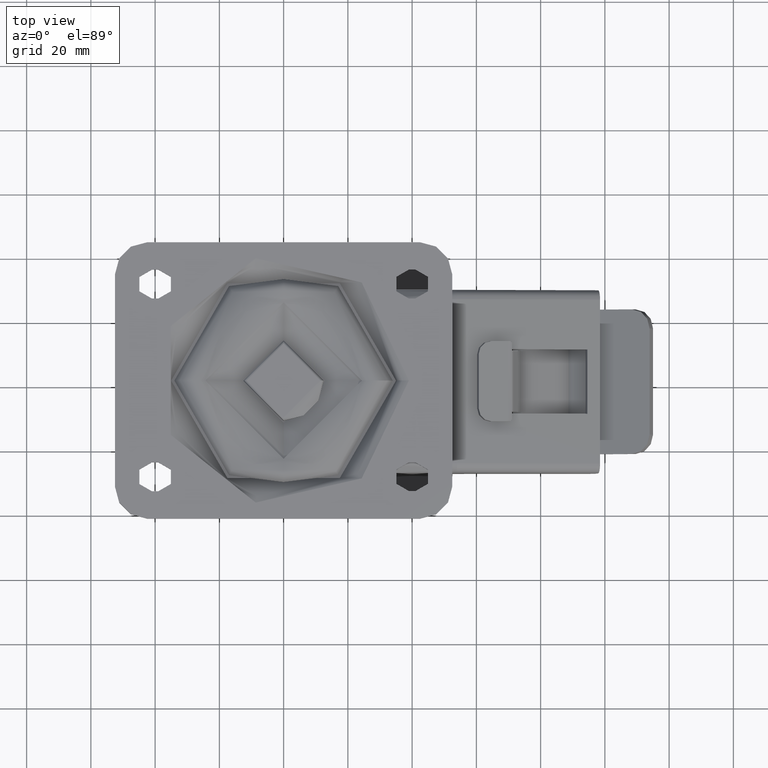
[diagram: clean part render]
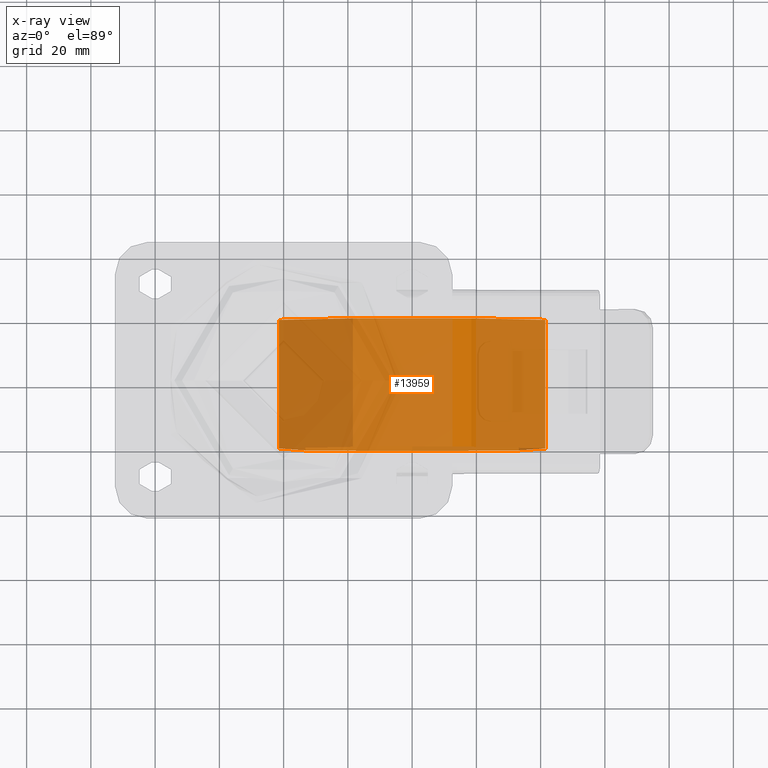
[diagram: x-ray — body ghosted, one internal face saturated and labeled with its STEP entity id]
A machine part, top view, then the same camera in x-ray: the body is ghosted and one INTERNAL B-rep face — a face not visible from any outside direction — is saturated and labeled: STEP entity #13959.
In plain terms, the highlighted cylindrical surface (bore or boss wall) has radius 42.5 mm, axis along (0, 1, 0).
Its self-contained STEP definition (entity closure, byte-faithful):
#1989=LINE('',#25011,#2932);
#2932=VECTOR('',#18132,42.5);
#3397=CYLINDRICAL_SURFACE('',#15352,42.5);
#3867=FACE_OUTER_BOUND('',#4749,.T.);
#4749=EDGE_LOOP('',(#11243,#11244,#11245,#11246));
#5530=CIRCLE('',#15353,42.5);
#5531=CIRCLE('',#15354,42.5);
#6556=VERTEX_POINT('',#25008);
#6557=VERTEX_POINT('',#25010);
#8191=EDGE_CURVE('',#6556,#6556,#5530,.T.);
#8192=EDGE_CURVE('',#6556,#6557,#1989,.T.);
#8193=EDGE_CURVE('',#6557,#6557,#5531,.T.);
#11243=ORIENTED_EDGE('',*,*,#8191,.F.);
#11244=ORIENTED_EDGE('',*,*,#8192,.T.);
#11245=ORIENTED_EDGE('',*,*,#8193,.T.);
#11246=ORIENTED_EDGE('',*,*,#8192,.F.);
#13959=ADVANCED_FACE('',(#3867),#3397,.T.);
#15352=AXIS2_PLACEMENT_3D('',#25007,#18128,#18129);
#15353=AXIS2_PLACEMENT_3D('',#25009,#18130,#18131);
#15354=AXIS2_PLACEMENT_3D('',#25012,#18133,#18134);
#18128=DIRECTION('center_axis',(0.,1.,0.));
#18129=DIRECTION('ref_axis',(0.,0.,1.));
#18130=DIRECTION('center_axis',(0.,1.,0.));
#18131=DIRECTION('ref_axis',(0.,0.,1.));
#18132=DIRECTION('',(0.,-1.,0.));
#18133=DIRECTION('center_axis',(0.,1.,0.));
#18134=DIRECTION('ref_axis',(0.,0.,1.));
#25007=CARTESIAN_POINT('Origin',(0.,3.46944695195361E-15,0.));
#25008=CARTESIAN_POINT('',(5.20474889637625E-15,20.,-42.5));
#25009=CARTESIAN_POINT('Origin',(0.,20.,0.));
#25010=CARTESIAN_POINT('',(5.20474889637625E-15,-20.,-42.5));
#25011=CARTESIAN_POINT('',(-5.20474889637625E-15,3.46944695195361E-15,-42.5));
#25012=CARTESIAN_POINT('Origin',(0.,-20.,0.));